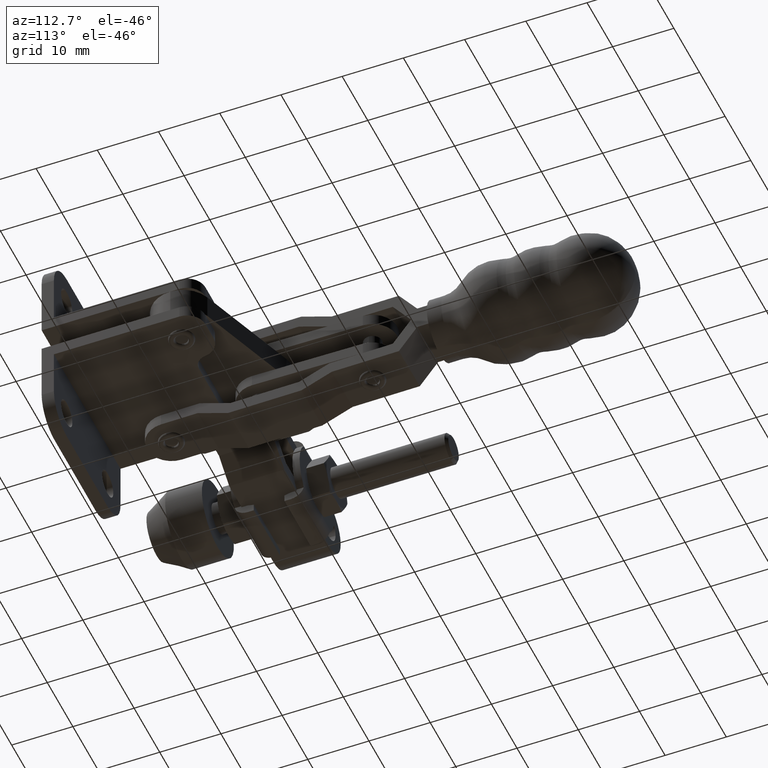
[diagram: clean part render]
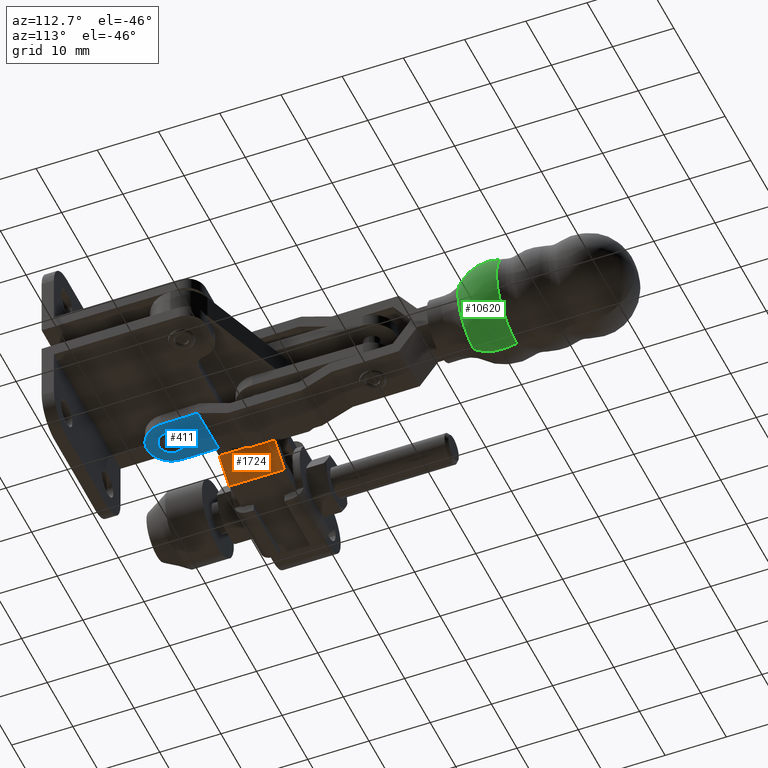
[diagram: same view with three faces highlighted in distinct colors, each labeled with its STEP entity id]
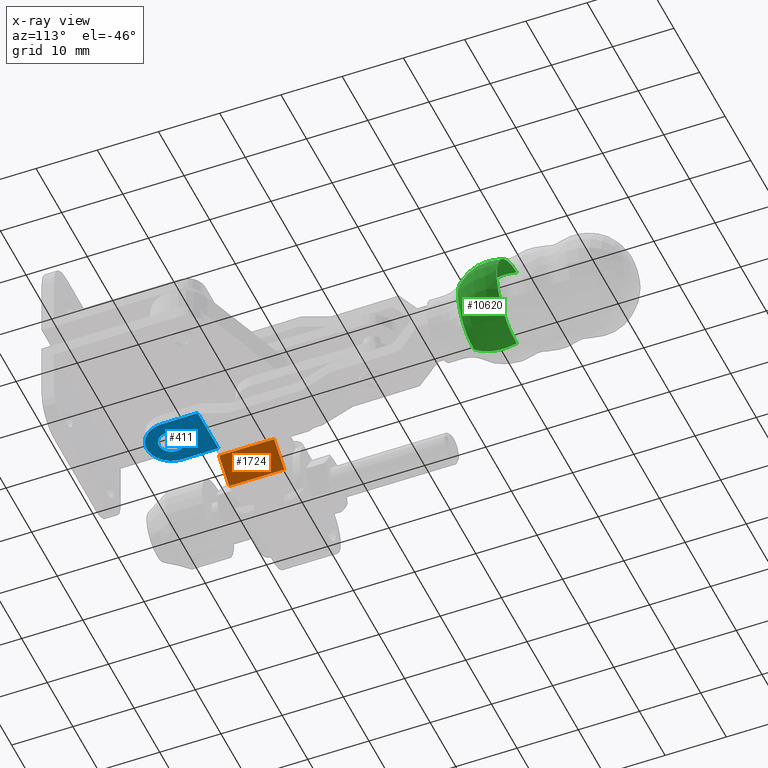
[diagram: x-ray of the same camera — body ghosted, the three highlighted faces saturated]
A machine part, auxiliary view with three faces highlighted in distinct colors.
The next image is the same camera in x-ray (body ghosted, the three faces saturated) — at least one of them is partly hidden behind the body in this view.
Their STEP definitions:

[orange] entity #1724 — the highlighted planar face has unit normal (-0.5665, -0, 0.824).
#313 = DIRECTION ( 'NONE',  ( -0.5665288228870466500, -1.269637613796853200E-032, 0.8240419241993803800 ) ) ;
#694 = CARTESIAN_POINT ( 'NONE',  ( -34.99999999999960900, 15.99999999999999600, -6.749999999999976900 ) ) ;
#1226 = LINE ( 'NONE', #4361, #5581 ) ;
#1721 = VECTOR ( 'NONE', #3327, 1000.000000000000000 ) ;
#1724 = ADVANCED_FACE ( 'NONE', ( #5996 ), #1923, .F. ) ;
#1830 = VERTEX_POINT ( 'NONE', #7496 ) ;
#1923 = PLANE ( 'NONE',  #5970 ) ;
#2241 = CARTESIAN_POINT ( 'NONE',  ( -34.99999999999960200, 25.00000000000011400, -6.749999999999973400 ) ) ;
#2566 = ORIENTED_EDGE ( 'NONE', *, *, #2737, .T. ) ;
#2737 = EDGE_CURVE ( 'NONE', #5338, #1830, #1226, .T. ) ;
#3327 = DIRECTION ( 'NONE',  ( -0.8240419241993804900, 8.728758594852884400E-033, -0.5665288228870465300 ) ) ;
#3663 = VECTOR ( 'NONE', #9136, 1000.000000000000000 ) ;
#3833 = CARTESIAN_POINT ( 'NONE',  ( -34.99999999999960900, 15.99999999999999600, -6.749999999999976900 ) ) ;
#3939 = LINE ( 'NONE', #7342, #3663 ) ;
#4043 = LINE ( 'NONE', #694, #1721 ) ;
#4361 = CARTESIAN_POINT ( 'NONE',  ( -30.99999999999938900, 32.00000000000000000, -3.999999999999960000 ) ) ;
#5110 = CARTESIAN_POINT ( 'NONE',  ( -34.99999999999960900, 32.00000000000000000, -6.749999999999976900 ) ) ;
#5338 = VERTEX_POINT ( 'NONE', #7308 ) ;
#5581 = VECTOR ( 'NONE', #10838, 1000.000000000000000 ) ;
#5880 = DIRECTION ( 'NONE',  ( 0.8240419241993803800, -8.728758594852885800E-033, 0.5665288228870466500 ) ) ;
#5898 = LINE ( 'NONE', #2241, #7956 ) ;
#5924 = CARTESIAN_POINT ( 'NONE',  ( -34.99999999999960900, 25.00000000000011400, -6.750000000000048000 ) ) ;
#5970 = AXIS2_PLACEMENT_3D ( 'NONE', #5110, #313, #5880 ) ;
#5996 = FACE_OUTER_BOUND ( 'NONE', #10457, .T. ) ;
#7308 = CARTESIAN_POINT ( 'NONE',  ( -30.99999999999938900, 25.00000000000011700, -3.999999999999960000 ) ) ;
#7342 = CARTESIAN_POINT ( 'NONE',  ( -34.99999999999960900, 32.00000000000000000, -6.749999999999976900 ) ) ;
#7496 = CARTESIAN_POINT ( 'NONE',  ( -30.99999999999938900, 15.99999999999999600, -3.999999999999960000 ) ) ;
#7687 = VERTEX_POINT ( 'NONE', #3833 ) ;
#7752 = ORIENTED_EDGE ( 'NONE', *, *, #7917, .T. ) ;
#7917 = EDGE_CURVE ( 'NONE', #1830, #7687, #4043, .T. ) ;
#7954 = VERTEX_POINT ( 'NONE', #5924 ) ;
#7956 = VECTOR ( 'NONE', #10921, 1000.000000000000100 ) ;
#8361 = EDGE_CURVE ( 'NONE', #5338, #7954, #5898, .T. ) ;
#8460 = ORIENTED_EDGE ( 'NONE', *, *, #10391, .F. ) ;
#9136 = DIRECTION ( 'NONE',  ( -0.0000000000000000000, -1.000000000000000000, 0.0000000000000000000 ) ) ;
#10190 = ORIENTED_EDGE ( 'NONE', *, *, #8361, .F. ) ;
#10391 = EDGE_CURVE ( 'NONE', #7954, #7687, #3939, .T. ) ;
#10457 = EDGE_LOOP ( 'NONE', ( #10190, #2566, #7752, #8460 ) ) ;
#10838 = DIRECTION ( 'NONE',  ( -0.0000000000000000000, -1.000000000000000000, 0.0000000000000000000 ) ) ;
#10921 = DIRECTION ( 'NONE',  ( -0.8240419241993804900, -8.025178223706765800E-016, -0.5665288228870466500 ) ) ;

[blue] entity #411 — the highlighted planar face has unit normal (0, 0, 1).
#205 = VECTOR ( 'NONE', #4446, 999.9999999999998900 ) ;
#347 = PLANE ( 'NONE',  #7120 ) ;
#411 = ADVANCED_FACE ( 'NONE', ( #4148, #8488 ), #347, .F. ) ;
#489 = CARTESIAN_POINT ( 'NONE',  ( -26.03470835014113400, 8.035012165302196900, -7.999999999999632300 ) ) ;
#538 = LINE ( 'NONE', #4290, #9222 ) ;
#570 = EDGE_CURVE ( 'NONE', #11204, #9481, #2240, .T. ) ;
#829 = CARTESIAN_POINT ( 'NONE',  ( -25.99984809241945900, 12.03486025772167200, -7.999999999999659800 ) ) ;
#1548 = CARTESIAN_POINT ( 'NONE',  ( -21.99999999999997200, 11.99999999999997000, -7.999999999999653600 ) ) ;
#1795 = CARTESIAN_POINT ( 'NONE',  ( -25.94755770583689300, 18.03463239635107100, -7.999999999999686500 ) ) ;
#1994 = EDGE_CURVE ( 'NONE', #9481, #9615, #5203, .T. ) ;
#2104 = CARTESIAN_POINT ( 'NONE',  ( -21.99999999999996100, 11.99999999999998000, -7.999999999999857900 ) ) ;
#2240 = LINE ( 'NONE', #489, #205 ) ;
#2570 = CARTESIAN_POINT ( 'NONE',  ( -21.99999999999996100, 11.99999999999998000, -7.999999999999857900 ) ) ;
#2987 = DIRECTION ( 'NONE',  ( 1.000000000000000000, 4.231032868236115600E-015, 3.384826294588892300E-015 ) ) ;
#3011 = EDGE_LOOP ( 'NONE', ( #7461, #6044 ) ) ;
#3111 = EDGE_CURVE ( 'NONE', #11204, #7885, #5050, .T. ) ;
#3294 = CARTESIAN_POINT ( 'NONE',  ( -17.94786152099797500, 17.96491188090768200, -7.999999999999686500 ) ) ;
#3316 = CIRCLE ( 'NONE', #7641, 2.049999999999999800 ) ;
#3439 = DIRECTION ( 'NONE',  ( 1.000000000000000000, 4.231032868236115600E-015, 3.384826294588892300E-015 ) ) ;
#3450 = DIRECTION ( 'NONE',  ( -0.008715064430423694700, -0.9999620231048645900, 5.431493164110122700E-015 ) ) ;
#3475 = EDGE_CURVE ( 'NONE', #7885, #9615, #538, .T. ) ;
#3594 = CARTESIAN_POINT ( 'NONE',  ( -24.04999999999996200, 11.99999999999997300, -7.999999999999865000 ) ) ;
#3653 = CARTESIAN_POINT ( 'NONE',  ( -18.00015190758052000, 11.96513974227828000, -7.999999999999653600 ) ) ;
#3730 = CARTESIAN_POINT ( 'NONE',  ( -19.94999999999996000, 11.99999999999998900, -7.999999999999850800 ) ) ;
#4148 = FACE_BOUND ( 'NONE', #3011, .T. ) ;
#4290 = CARTESIAN_POINT ( 'NONE',  ( -18.03501216530221600, 7.965291649858804700, -7.999999999999632300 ) ) ;
#4446 = DIRECTION ( 'NONE',  ( -0.008715064430423694700, -0.9999620231048645900, 5.431493164110122700E-015 ) ) ;
#5050 = LINE ( 'NONE', #1795, #9941 ) ;
#5203 = CIRCLE ( 'NONE', #10574, 3.999999999999989300 ) ;
#5325 = EDGE_CURVE ( 'NONE', #8832, #10155, #3316, .T. ) ;
#5633 = ORIENTED_EDGE ( 'NONE', *, *, #3475, .T. ) ;
#5882 = ORIENTED_EDGE ( 'NONE', *, *, #1994, .F. ) ;
#6013 = CARTESIAN_POINT ( 'NONE',  ( -25.94755770583689300, 18.03463239635107100, -7.999999999999686500 ) ) ;
#6044 = ORIENTED_EDGE ( 'NONE', *, *, #10640, .T. ) ;
#7120 = AXIS2_PLACEMENT_3D ( 'NONE', #8363, #8055, #8869 ) ;
#7429 = ORIENTED_EDGE ( 'NONE', *, *, #570, .F. ) ;
#7461 = ORIENTED_EDGE ( 'NONE', *, *, #5325, .T. ) ;
#7641 = AXIS2_PLACEMENT_3D ( 'NONE', #2104, #8191, #2987 ) ;
#7885 = VERTEX_POINT ( 'NONE', #3294 ) ;
#8050 = EDGE_LOOP ( 'NONE', ( #5882, #7429, #11078, #5633 ) ) ;
#8055 = DIRECTION ( 'NONE',  ( 7.385162495833439900E-017, 5.431055797076799700E-015, 1.000000000000000000 ) ) ;
#8096 = DIRECTION ( 'NONE',  ( 0.008715064430423977500, 0.9999620231048644800, -5.637851296924638000E-015 ) ) ;
#8191 = DIRECTION ( 'NONE',  ( -3.097772640625034800E-015, -4.578509359510355300E-015, 1.000000000000000000 ) ) ;
#8363 = CARTESIAN_POINT ( 'NONE',  ( -26.03470835014113400, 8.035012165302196900, -7.999999999999632300 ) ) ;
#8488 = FACE_OUTER_BOUND ( 'NONE', #8050, .T. ) ;
#8645 = DIRECTION ( 'NONE',  ( -3.097772640625034800E-015, -4.578509359510355300E-015, 1.000000000000000000 ) ) ;
#8832 = VERTEX_POINT ( 'NONE', #3730 ) ;
#8869 = DIRECTION ( 'NONE',  ( 0.008715064430423693000, 0.9999620231048644800, -5.431493164110122700E-015 ) ) ;
#9094 = CIRCLE ( 'NONE', #9456, 2.049999999999999800 ) ;
#9222 = VECTOR ( 'NONE', #3450, 999.9999999999998900 ) ;
#9456 = AXIS2_PLACEMENT_3D ( 'NONE', #2570, #8645, #3439 ) ;
#9481 = VERTEX_POINT ( 'NONE', #829 ) ;
#9615 = VERTEX_POINT ( 'NONE', #3653 ) ;
#9789 = DIRECTION ( 'NONE',  ( 7.385162495833441100E-017, 5.431055797076802100E-015, 1.000000000000000000 ) ) ;
#9941 = VECTOR ( 'NONE', #10187, 999.9999999999998900 ) ;
#10155 = VERTEX_POINT ( 'NONE', #3594 ) ;
#10187 = DIRECTION ( 'NONE',  ( 0.9999620231048645900, -0.008715064430423694700, -2.651681910616734900E-017 ) ) ;
#10574 = AXIS2_PLACEMENT_3D ( 'NONE', #1548, #9789, #8096 ) ;
#10640 = EDGE_CURVE ( 'NONE', #10155, #8832, #9094, .T. ) ;
#11078 = ORIENTED_EDGE ( 'NONE', *, *, #3111, .T. ) ;
#11204 = VERTEX_POINT ( 'NONE', #6013 ) ;

[green] entity #10620 — the highlighted toroidal blend (fillet) surface has major radius 0.5 mm and minor (blend) radius 7.5 mm.
#122 = TOROIDAL_SURFACE ( 'NONE', #8882, 0.4999999999999961100, 7.499999999999996400 ) ;
#649 = DIRECTION ( 'NONE',  ( 0.0000000000000000000, 0.0000000000000000000, -1.000000000000000000 ) ) ;
#775 = CIRCLE ( 'NONE', #3572, 7.699999999999930900 ) ;
#1373 = EDGE_CURVE ( 'NONE', #7850, #4573, #4144, .T. ) ;
#1820 = DIRECTION ( 'NONE',  ( -0.9999620231048644800, 0.008715064430423693000, 2.601379937326479400E-018 ) ) ;
#2523 = DIRECTION ( 'NONE',  ( -0.008715064430423693000, -0.9999620231048644800, 4.848667521160324900E-019 ) ) ;
#2544 = CARTESIAN_POINT ( 'NONE',  ( -21.56750989942086200, 61.62369233188626100, 4.200000000000202700 ) ) ;
#3572 = AXIS2_PLACEMENT_3D ( 'NONE', #11022, #5832, #649 ) ;
#4011 = CIRCLE ( 'NONE', #5845, 6.199999999999946900 ) ;
#4144 = CIRCLE ( 'NONE', #10706, 7.499999999999988500 ) ;
#4573 = VERTEX_POINT ( 'NONE', #2544 ) ;
#4682 = DIRECTION ( 'NONE',  ( -0.008715064430423693000, -0.9999620231048644800, 4.848667521160324900E-019 ) ) ;
#4822 = CARTESIAN_POINT ( 'NONE',  ( -21.56750989942086200, 61.62369233188626100, -8.199999999999693800 ) ) ;
#5278 = FACE_OUTER_BOUND ( 'NONE', #7131, .T. ) ;
#5832 = DIRECTION ( 'NONE',  ( -0.008715064430423693000, -0.9999620231048644800, 4.848667521160324900E-019 ) ) ;
#5845 = AXIS2_PLACEMENT_3D ( 'NONE', #9876, #4682, #10733 ) ;
#7001 = CARTESIAN_POINT ( 'NONE',  ( -21.52502898854188000, 66.49793025921515300, -2.499999999999741100 ) ) ;
#7131 = EDGE_LOOP ( 'NONE', ( #10419, #7691, #8666, #8843 ) ) ;
#7192 = CARTESIAN_POINT ( 'NONE',  ( -21.52502898854188000, 66.49793025921515300, -1.499999999999748900 ) ) ;
#7691 = ORIENTED_EDGE ( 'NONE', *, *, #1373, .T. ) ;
#7844 = AXIS2_PLACEMENT_3D ( 'NONE', #7001, #1820, #7894 ) ;
#7850 = VERTEX_POINT ( 'NONE', #8456 ) ;
#7894 = DIRECTION ( 'NONE',  ( -0.008715064430423843900, -0.9999620231048644800, 0.0000000000000000000 ) ) ;
#8204 = CIRCLE ( 'NONE', #7844, 7.499999999999995600 ) ;
#8456 = CARTESIAN_POINT ( 'NONE',  ( -21.50672735323798400, 68.59785050773555800, 5.700000000000183100 ) ) ;
#8466 = CARTESIAN_POINT ( 'NONE',  ( -21.50672735323798400, 68.59785050773555800, -9.699999999999674200 ) ) ;
#8599 = DIRECTION ( 'NONE',  ( -4.225644984861497100E-021, -4.848483383822327100E-019, -1.000000000000000000 ) ) ;
#8666 = ORIENTED_EDGE ( 'NONE', *, *, #8821, .F. ) ;
#8696 = DIRECTION ( 'NONE',  ( 0.9999620231048644800, -0.008715064430423693000, -1.250660598520618100E-016 ) ) ;
#8821 = EDGE_CURVE ( 'NONE', #10401, #4573, #4011, .T. ) ;
#8843 = ORIENTED_EDGE ( 'NONE', *, *, #9537, .F. ) ;
#8882 = AXIS2_PLACEMENT_3D ( 'NONE', #9430, #2523, #8599 ) ;
#9018 = DIRECTION ( 'NONE',  ( 0.008715064430423852600, 0.9999620231048644800, 0.0000000000000000000 ) ) ;
#9430 = CARTESIAN_POINT ( 'NONE',  ( -21.52502898854188000, 66.49793025921515300, -1.999999999999745100 ) ) ;
#9537 = EDGE_CURVE ( 'NONE', #9962, #10401, #8204, .T. ) ;
#9876 = CARTESIAN_POINT ( 'NONE',  ( -21.56750989942086200, 61.62369233188626100, -1.999999999999745100 ) ) ;
#9962 = VERTEX_POINT ( 'NONE', #8466 ) ;
#10401 = VERTEX_POINT ( 'NONE', #4822 ) ;
#10419 = ORIENTED_EDGE ( 'NONE', *, *, #11065, .T. ) ;
#10620 = ADVANCED_FACE ( 'NONE', ( #5278 ), #122, .T. ) ;
#10706 = AXIS2_PLACEMENT_3D ( 'NONE', #7192, #8696, #9018 ) ;
#10733 = DIRECTION ( 'NONE',  ( 0.0000000000000000000, 0.0000000000000000000, -1.000000000000000000 ) ) ;
#11022 = CARTESIAN_POINT ( 'NONE',  ( -21.50672735323798800, 68.59785050773557200, -1.999999999999745100 ) ) ;
#11065 = EDGE_CURVE ( 'NONE', #9962, #7850, #775, .T. ) ;